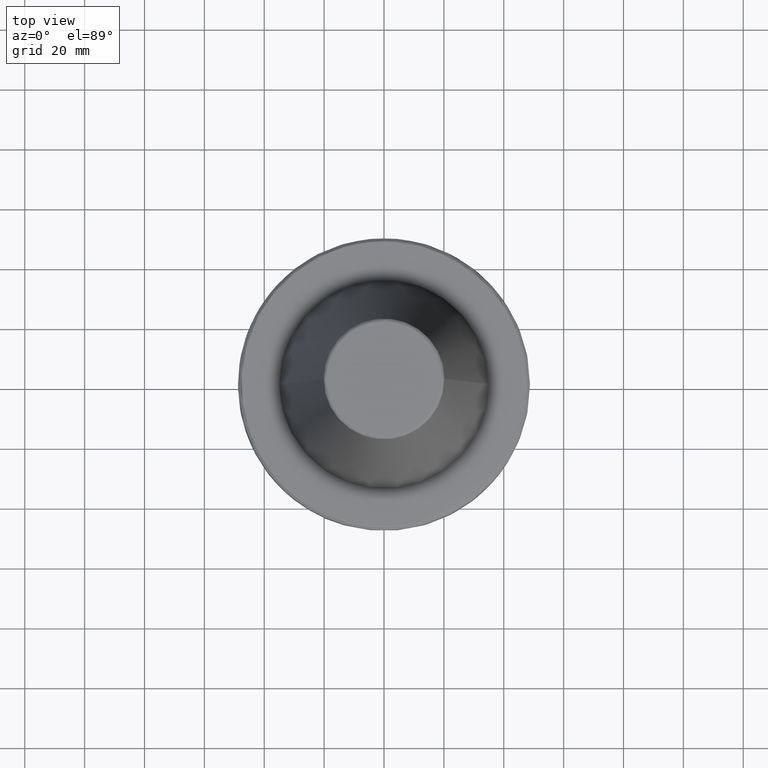
[diagram: clean part render]
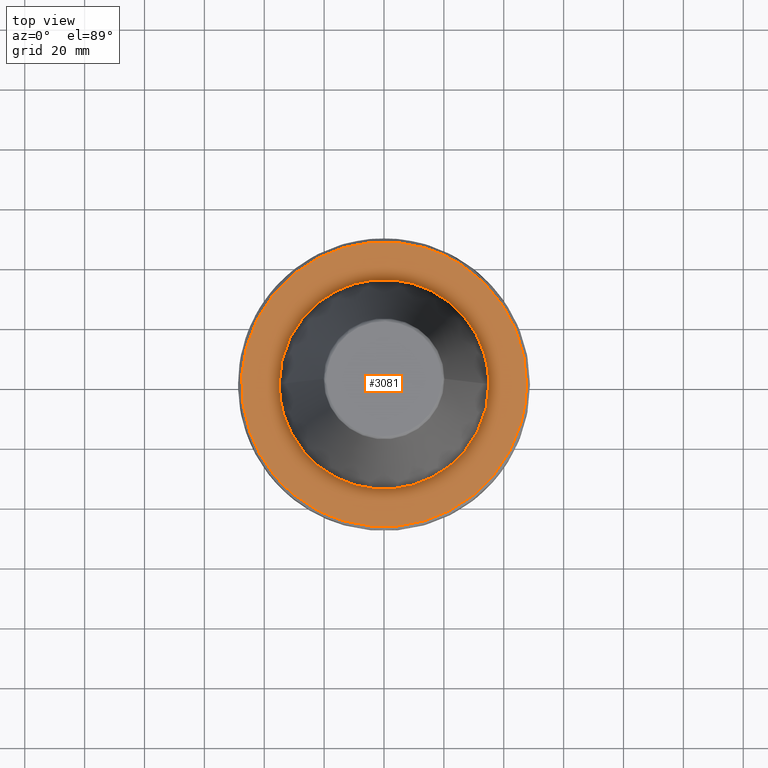
[diagram: same view with one face highlighted and labeled with its STEP entity id]
A machine part, top view. The second image highlights one B-rep face of the part: STEP entity #3081.
In plain terms, the highlighted planar face has unit normal (0, 0, 1).
Its self-contained STEP definition (entity closure, byte-faithful):
#1 = CIRCLE ( 'NONE', #2830, 47.58431457505076200 ) ;
#8 = CARTESIAN_POINT ( 'NONE',  ( -7.484680064100915700, -34.20919177140100200, -3.200000000000002000 ) ) ;
#20 = CARTESIAN_POINT ( 'NONE',  ( -18.71766838409589400, -29.57513658498475500, -3.200000000000001500 ) ) ;
#25 = CARTESIAN_POINT ( 'NONE',  ( -30.00000000000000700, -36.93598507658064300, -3.199999999999994400 ) ) ;
#30 = CARTESIAN_POINT ( 'NONE',  ( -29.25439692751874100, -19.21420423913502900, -3.200000000000001100 ) ) ;
#35 = CARTESIAN_POINT ( 'NONE',  ( -34.71393053172149500, 4.522777660849747000, -3.200000000000000600 ) ) ;
#53 = CARTESIAN_POINT ( 'NONE',  ( -34.22336994005453900, -7.342137192584755400, -3.200000000000001100 ) ) ;
#56 = CARTESIAN_POINT ( 'NONE',  ( -32.59456622067332200, 12.75129574512329000, -3.200000000000002000 ) ) ;
#98 = CARTESIAN_POINT ( 'NONE',  ( -29.37554792989231300, 19.02846970913294200, -3.200000000000002400 ) ) ;
#110 = CARTESIAN_POINT ( 'NONE',  ( -16.63655267340255200, 30.83329837198616000, -3.200000000000001500 ) ) ;
#117 = CARTESIAN_POINT ( 'NONE',  ( -19.43494740864859700, -43.54708784160002500, -3.200000000000001100 ) ) ;
#119 = CARTESIAN_POINT ( 'NONE',  ( 26.44261181941484300, -39.56134383749156300, -3.200000000000000600 ) ) ;
#121 = CARTESIAN_POINT ( 'NONE',  ( -6.612690763923023200, 34.36977381871476900, -3.200000000000001100 ) ) ;
#132 = CARTESIAN_POINT ( 'NONE',  ( 25.98226908289688800, -39.86687285254421200, -3.200000000000000600 ) ) ;
#136 = CARTESIAN_POINT ( 'NONE',  ( 6.302909256718462100, 34.42781451759762500, -3.200000000000002000 ) ) ;
#140 = CARTESIAN_POINT ( 'NONE',  ( 35.00000000000000000, 0.0000000000000000000, -3.200000000000001500 ) ) ;
#143 = CARTESIAN_POINT ( 'NONE',  ( 47.18039861107992300, 6.200159950490469600, -3.200000000000001100 ) ) ;
#148 = CARTESIAN_POINT ( 'NONE',  ( 25.05340298729066400, -40.46362946565685100, -3.200000000000001500 ) ) ;
#151 = CARTESIAN_POINT ( 'NONE',  ( -18.67389639941947600, 43.76706569847706900, -3.200000000000001500 ) ) ;
#152 = CARTESIAN_POINT ( 'NONE',  ( 17.39569460393197900, 30.38123465408075700, -3.200000000000001100 ) ) ;
#157 = CARTESIAN_POINT ( 'NONE',  ( -14.45957362275167100, 45.34410715121639200, -3.200000000000001100 ) ) ;
#158 = CARTESIAN_POINT ( 'NONE',  ( 45.31099424279402400, 14.53228453994817400, -3.200000000000002000 ) ) ;
#163 = CARTESIAN_POINT ( 'NONE',  ( -28.18663181544996400, 38.33853659444778800, -3.200000000000000600 ) ) ;
#164 = CARTESIAN_POINT ( 'NONE',  ( 29.12859832661076400, 19.40440699316710000, -3.200000000000002000 ) ) ;
#170 = CARTESIAN_POINT ( 'NONE',  ( 33.74831642305332500, 33.54865932863487600, -3.200000000000001100 ) ) ;
#172 = EDGE_LOOP ( 'NONE', ( #696, #3424 ) ) ;
#175 = CARTESIAN_POINT ( 'NONE',  ( -39.85970698512647200, 25.99808194460686300, -3.200000000000001100 ) ) ;
#176 = EDGE_CURVE ( 'NONE', #3006, #1628, #2315, .T. ) ;
#178 = CARTESIAN_POINT ( 'NONE',  ( 33.50782965918070000, 10.22234251020762700, -3.200000000000000600 ) ) ;
#182 = CARTESIAN_POINT ( 'NONE',  ( 25.85766165876341900, 39.96557434558405900, -3.200000000000002000 ) ) ;
#186 = CARTESIAN_POINT ( 'NONE',  ( -44.23199334317630600, 17.64654270460258400, -3.200000000000002000 ) ) ;
#194 = CARTESIAN_POINT ( 'NONE',  ( -47.44794916077430700, 3.614324310178101700, -3.200000000000002800 ) ) ;
#199 = CARTESIAN_POINT ( 'NONE',  ( -46.20125035460515800, -11.46493010789107300, -3.200000000000000200 ) ) ;
#206 = ORIENTED_EDGE ( 'NONE', *, *, #1292, .T. ) ;
#207 = CARTESIAN_POINT ( 'NONE',  ( -41.97089674875826400, -22.45806956467756900, -3.200000000000001100 ) ) ;
#215 = ORIENTED_EDGE ( 'NONE', *, *, #176, .T. ) ;
#220 = CARTESIAN_POINT ( 'NONE',  ( -13.55000000000004000, -45.61430141498812000, -3.199999999999999300 ) ) ;
#225 = CARTESIAN_POINT ( 'NONE',  ( 34.71393053172150900, -4.522777660849745200, -3.200000000000000600 ) ) ;
#231 = CARTESIAN_POINT ( 'NONE',  ( 32.59456622067307300, -12.75129574512461700, -3.200000000000001100 ) ) ;
#240 = CARTESIAN_POINT ( 'NONE',  ( 23.89460483453078900, -25.60289613072279000, -3.200000000000000600 ) ) ;
#250 = CARTESIAN_POINT ( 'NONE',  ( 13.12353511134049100, -32.44661293862724700, -3.200000000000001100 ) ) ;
#261 = CARTESIAN_POINT ( 'NONE',  ( 4.264027316360163400, -34.80519685504652500, -3.200000000000001100 ) ) ;
#268 = CARTESIAN_POINT ( 'NONE',  ( -11.02286519849236900, -33.22762448501621400, -3.200000000000001100 ) ) ;
#278 = CARTESIAN_POINT ( 'NONE',  ( -19.02846970913748200, -29.37554792988932900, -3.200000000000000600 ) ) ;
#291 = CARTESIAN_POINT ( 'NONE',  ( -30.83329837197338800, -16.63655267341178100, -3.200000000000002000 ) ) ;
#295 = CARTESIAN_POINT ( 'NONE',  ( -34.49823719593175000, 5.907950186018663200, -3.200000000000001100 ) ) ;
#301 = CARTESIAN_POINT ( 'NONE',  ( 47.02259631691209300, -7.289981784602988000, -3.200000000000000200 ) ) ;
#303 = CARTESIAN_POINT ( 'NONE',  ( -34.36977381871909600, -6.612690763914757900, -3.200000000000001500 ) ) ;
#305 = CARTESIAN_POINT ( 'NONE',  ( -32.55619322207724100, 12.84895367128259600, -3.200000000000001500 ) ) ;
#353 = CARTESIAN_POINT ( 'NONE',  ( -27.97287582442092500, 21.17444947139290100, -3.200000000000001500 ) ) ;
#356 = CARTESIAN_POINT ( 'NONE',  ( -35.00000000000000000, 4.286263797015737300E-015, -3.200000000000001500 ) ) ;
#369 = CARTESIAN_POINT ( 'NONE',  ( -13.83968161197703100, 32.14999761353126200, -3.200000000000001100 ) ) ;
#376 = CARTESIAN_POINT ( 'NONE',  ( -13.55000000000004000, -45.61430141498812000, -3.199999999999999300 ) ) ;
#385 = CARTESIAN_POINT ( 'NONE',  ( -6.438461267135233300, 34.40272425953072900, -3.200000000000000600 ) ) ;
#387 = VERTEX_POINT ( 'NONE', #220 ) ;
#396 = CARTESIAN_POINT ( 'NONE',  ( 32.45423464501639200, -34.79967915306077900, -3.200000000000002400 ) ) ;
#399 = CARTESIAN_POINT ( 'NONE',  ( 7.484680064034233900, 34.20919177141554000, -3.200000000000001500 ) ) ;
#405 = CARTESIAN_POINT ( 'NONE',  ( 47.06829021516598000, 6.989508869543020500, -3.200000000000001100 ) ) ;
#409 = CARTESIAN_POINT ( 'NONE',  ( -18.83616776527658500, 43.69747580304270700, -3.200000000000001100 ) ) ;
#411 = CARTESIAN_POINT ( 'NONE',  ( 18.71766838408140600, 29.57513658499558300, -3.200000000000001100 ) ) ;
#418 = CARTESIAN_POINT ( 'NONE',  ( -15.80948444976875100, 44.89884780776286300, -3.200000000000000600 ) ) ;
#419 = CARTESIAN_POINT ( 'NONE',  ( 44.21619689605959300, 17.66806265541932300, -3.199999999999999700 ) ) ;
#424 = CARTESIAN_POINT ( 'NONE',  ( 32.09796523353852400, -35.13085002072136100, -3.200000000000001500 ) ) ;
#426 = CARTESIAN_POINT ( 'NONE',  ( -28.77713114762264000, 37.89729735944649000, -3.200000000000001500 ) ) ;
#428 = CARTESIAN_POINT ( 'NONE',  ( 29.25439692751638500, 19.21420423913906100, -3.200000000000001500 ) ) ;
#437 = CARTESIAN_POINT ( 'NONE',  ( 33.16242677104989400, 34.12517462232685300, -3.200000000000002000 ) ) ;
#440 = CARTESIAN_POINT ( 'NONE',  ( 46.64842286613216500, -9.428839320853871400, -3.200000000000001100 ) ) ;
#443 = CARTESIAN_POINT ( 'NONE',  ( -40.51526929576444000, 24.95587079667019000, -3.200000000000001500 ) ) ;
#447 = CARTESIAN_POINT ( 'NONE',  ( 22.32197853637967500, 42.03222146232140900, -3.200000000000000600 ) ) ;
#449 = CARTESIAN_POINT ( 'NONE',  ( -45.74009876992972300, 13.15338452568506300, -3.200000000000002000 ) ) ;
#456 = CARTESIAN_POINT ( 'NONE',  ( -47.48922112369854200, 3.009240607174860300, -3.200000000000001500 ) ) ;
#467 = CARTESIAN_POINT ( 'NONE',  ( -45.52455029067157000, -13.85084669837307000, -3.200000000000000600 ) ) ;
#475 = CARTESIAN_POINT ( 'NONE',  ( -40.69683095875779300, -24.66047681318040200, -3.200000000000000600 ) ) ;
#481 = EDGE_CURVE ( 'NONE', #1668, #2296, #2128, .T. ) ;
#484 = CARTESIAN_POINT ( 'NONE',  ( 34.49823719593174300, -5.907950186018658700, -3.200000000000000600 ) ) ;
#498 = CARTESIAN_POINT ( 'NONE',  ( 32.55619322207754600, -12.84895367128201500, -3.200000000000000600 ) ) ;
#510 = CARTESIAN_POINT ( 'NONE',  ( 20.88778623095515000, -28.09551826175010400, -3.200000000000002400 ) ) ;
#518 = CARTESIAN_POINT ( 'NONE',  ( 12.95202981245491700, -32.51532341133663100, -3.200000000000002000 ) ) ;
#531 = CARTESIAN_POINT ( 'NONE',  ( -1.070209459185427600, -35.00001621622374900, -3.200000000000002400 ) ) ;
#544 = CARTESIAN_POINT ( 'NONE',  ( -12.42068019836582900, -32.72251864197144000, -3.200000000000002000 ) ) ;
#555 = CIRCLE ( 'NONE', #2373, 47.58431457505076200 ) ;
#556 = CARTESIAN_POINT ( 'NONE',  ( -21.17444947146037700, -27.97287582437680700, -3.200000000000001100 ) ) ;
#569 = CARTESIAN_POINT ( 'NONE',  ( -32.14999761352568400, -13.83968161198105500, -3.200000000000000600 ) ) ;
#572 = CARTESIAN_POINT ( 'NONE',  ( -34.43979647510159500, 6.237109590206945800, -3.200000000000001500 ) ) ;
#581 = AXIS2_PLACEMENT_3D ( 'NONE', #2475, #1162, #3005 ) ;
#588 = CARTESIAN_POINT ( 'NONE',  ( -34.40272425953199300, -6.438461267132821900, -3.200000000000001100 ) ) ;
#598 = CARTESIAN_POINT ( 'NONE',  ( 47.58431457505076200, 0.0000000000000000000, -3.200000000000000600 ) ) ;
#624 = DIRECTION ( 'NONE',  ( -0.0000000000000000000, -0.0000000000000000000, 1.000000000000000000 ) ) ;
#633 = CARTESIAN_POINT ( 'NONE',  ( -23.89460483454596200, 25.60289613071151700, -3.200000000000001100 ) ) ;
#651 = CARTESIAN_POINT ( 'NONE',  ( -13.12353511134512400, 32.44661293862448300, -3.200000000000002000 ) ) ;
#657 = B_SPLINE_CURVE_WITH_KNOTS ( 'NONE', 3,
 ( #3063, #1221, #3327, #1792, #143, #2048, #405, #2308, #682, #2559, #957, #2821, #1236, #3074, #1520, #3340, #1805, #158, #2062, #419, #2325, #698, #2574, #970, #2834, #1252, #3086, #1530, #3355, #1816, #170, #2073, #437, #2336, #708, #2588, #983, #2844, #1265, #3099, #1545, #3362, #1828, #182, #2083, #447, #2347, #716, #2593, #997, #2857, #1271, #3108, #1559, #3367 ),
 .UNSPECIFIED., .F., .F.,
 ( 4, 1, 1, 1, 1, 1, 2, 2, 1, 1, 1, 1, 2, 2, 1, 1, 1, 2, 2, 2, 1, 1, 1, 1, 2, 2, 1, 1, 1, 1, 2, 2, 1, 1, 1, 1, 1, 2, 2, 4 ),
 ( 0.0000000000000000000, 0.06249999999999872300, 0.09374999999999808500, 0.1093749999999977700, 0.1171874999999976100, 0.1210937499999975300, 0.1230468749999974700, 0.1249999999999974200, 0.1874999999999961100, 0.2187499999999954200, 0.2343749999999951400, 0.2421874999999949500, 0.2460937499999948900, 0.2499999999999948400, 0.3124999999999941700, 0.3437499999999937300, 0.3593749999999935100, 0.3671874999999933400, 0.3749999999999931700, 0.4999999999999917800, 0.5624999999999909000, 0.5937499999999907900, 0.6093749999999907900, 0.6171874999999905600, 0.6210937499999906700, 0.6249999999999906700, 0.6874999999999917800, 0.7187499999999924500, 0.7343749999999925600, 0.7421874999999925600, 0.7460937499999926700, 0.7499999999999926700, 0.8124999999999924500, 0.8437499999999925600, 0.8593749999999927800, 0.8671874999999927800, 0.8710937499999927800, 0.8730468749999927800, 0.8749999999999928900, 1.000000000000000000 ),
 .UNSPECIFIED. ) ;
#661 = CARTESIAN_POINT ( 'NONE',  ( -4.264027316417490000, 34.80519685506052200, -3.200000000000001100 ) ) ;
#669 = CARTESIAN_POINT ( 'NONE',  ( 46.18298664309590900, -11.58485019967819900, -3.200000000000001100 ) ) ;
#673 = CARTESIAN_POINT ( 'NONE',  ( 11.02286519840483300, 33.22762448503527100, -3.200000000000001100 ) ) ;
#682 = CARTESIAN_POINT ( 'NONE',  ( 47.03992380506183200, 7.177322297439717500, -3.200000000000000200 ) ) ;
#690 = CARTESIAN_POINT ( 'NONE',  ( -21.09892721072789700, 42.67032287655292300, -3.200000000000001500 ) ) ;
#692 = CARTESIAN_POINT ( 'NONE',  ( 19.02846970913313700, 29.37554792989258000, -3.200000000000000600 ) ) ;
#696 = ORIENTED_EDGE ( 'NONE', *, *, #481, .T. ) ;
#698 = CARTESIAN_POINT ( 'NONE',  ( 42.81655896315435000, 20.76531420100237900, -3.200000000000001100 ) ) ;
#703 = CARTESIAN_POINT ( 'NONE',  ( -32.04549828590995000, 35.23207161255322000, -3.200000000000001100 ) ) ;
#704 = CARTESIAN_POINT ( 'NONE',  ( 30.83329837203913100, 16.63655267329933100, -3.200000000000001500 ) ) ;
#708 = CARTESIAN_POINT ( 'NONE',  ( 32.98419360930024900, 34.29747021916393400, -3.200000000000001100 ) ) ;
#712 = CARTESIAN_POINT ( 'NONE',  ( -40.70889109936253200, 24.63874541703254600, -3.200000000000002000 ) ) ;
#716 = CARTESIAN_POINT ( 'NONE',  ( 20.84251516373738200, 42.77734476559471900, -3.200000000000000600 ) ) ;
#720 = CARTESIAN_POINT ( 'NONE',  ( -46.48964783892607500, 10.16745593392174600, -3.200000000000001100 ) ) ;
#723 = EDGE_LOOP ( 'NONE', ( #2158, #896, #206, #215, #2570, #1578, #1723 ) ) ;
#734 = CARTESIAN_POINT ( 'NONE',  ( -47.56112784876310000, 1.782910741998355000, -3.200000000000001500 ) ) ;
#739 = CARTESIAN_POINT ( 'NONE',  ( -45.30154187624126600, -14.56357692435866400, -3.200000000000001100 ) ) ;
#741 = CARTESIAN_POINT ( 'NONE',  ( 34.22336994005794300, 7.342137192553624700, -3.200000000000000600 ) ) ;
#744 = CARTESIAN_POINT ( 'NONE',  ( -40.37832428545935700, -25.17660737733758900, -3.200000000000001500 ) ) ;
#751 = EDGE_CURVE ( 'NONE', #1628, #3351, #657, .T. ) ;
#764 = CARTESIAN_POINT ( 'NONE',  ( 34.43979647510158800, -6.237109590206941300, -3.200000000000001100 ) ) ;
#769 = CARTESIAN_POINT ( 'NONE',  ( 31.37487172763907900, -15.59116830087131700, -3.200000000000002000 ) ) ;
#775 = CARTESIAN_POINT ( 'NONE',  ( 19.59265025307810100, -29.00292566127140100, -3.200000000000001500 ) ) ;
#788 = CARTESIAN_POINT ( 'NONE',  ( 11.82808836356204400, -32.96036308137187400, -3.200000000000002000 ) ) ;
#799 = CARTESIAN_POINT ( 'NONE',  ( -4.522662636201488300, -34.71395181551518000, -3.200000000000001100 ) ) ;
#808 = CARTESIAN_POINT ( 'NONE',  ( -12.75129574512861600, -32.59456622067233400, -3.200000000000002000 ) ) ;
#824 = CARTESIAN_POINT ( 'NONE',  ( -25.60289613074492700, -23.89460483450089300, -3.200000000000002000 ) ) ;
#841 = CARTESIAN_POINT ( 'NONE',  ( -32.44661293862293400, -13.12353511134623600, -3.200000000000001100 ) ) ;
#844 = CARTESIAN_POINT ( 'NONE',  ( -34.42214089842920500, 6.333832670999061800, -3.200000000000000600 ) ) ;
#857 = CARTESIAN_POINT ( 'NONE',  ( -34.80522929819336000, -4.263852012492216100, -3.200000000000001500 ) ) ;
#865 = CARTESIAN_POINT ( 'NONE',  ( 47.01629565795704500, -7.330514881587470600, -3.200000000000001100 ) ) ;
#867 = CARTESIAN_POINT ( 'NONE',  ( -31.37487172765630900, 15.59116830083820700, -3.200000000000000200 ) ) ;
#896 = ORIENTED_EDGE ( 'NONE', *, *, #3143, .T. ) ;
#911 = CARTESIAN_POINT ( 'NONE',  ( -20.88778623097507000, 28.09551826173528600, -3.200000000000001500 ) ) ;
#920 = CARTESIAN_POINT ( 'NONE',  ( -12.95202981245626000, 32.51532341133582800, -3.200000000000000200 ) ) ;
#929 = CARTESIAN_POINT ( 'NONE',  ( 41.76982192489803900, -22.79788105289517100, -3.200000000000001500 ) ) ;
#932 = CARTESIAN_POINT ( 'NONE',  ( 1.070209459212092300, 35.00001621621675700, -3.200000000000002000 ) ) ;
#950 = CARTESIAN_POINT ( 'NONE',  ( 12.42068019833845600, 32.72251864197743000, -3.200000000000000600 ) ) ;
#957 = CARTESIAN_POINT ( 'NONE',  ( 46.83576360695446500, 8.501588316358651200, -3.200000000000001100 ) ) ;
#962 = CARTESIAN_POINT ( 'NONE',  ( 41.21228271004850500, -23.80309394508987000, -3.200000000000002000 ) ) ;
#964 = CARTESIAN_POINT ( 'NONE',  ( -23.34110521951909300, 41.46762625125254700, -3.200000000000000600 ) ) ;
#965 = CARTESIAN_POINT ( 'NONE',  ( 21.17444947147954100, 27.97287582435764400, -3.200000000000001500 ) ) ;
#970 = CARTESIAN_POINT ( 'NONE',  ( 42.45501299875426300, 21.49105359671178700, -3.200000000000002800 ) ) ;
#972 = CARTESIAN_POINT ( 'NONE',  ( 46.94140912372339600, -7.798446834104212600, -3.200000000000001100 ) ) ;
#975 = CARTESIAN_POINT ( 'NONE',  ( -35.18967846161645200, 32.05755272126131700, -3.199999999999999300 ) ) ;
#976 = CARTESIAN_POINT ( 'NONE',  ( 32.14999761355444000, 13.83968161193186200, -3.200000000000000600 ) ) ;
#983 = CARTESIAN_POINT ( 'NONE',  ( 30.53220719718259700, 36.53788278290805600, -3.200000000000001100 ) ) ;
#986 = CARTESIAN_POINT ( 'NONE',  ( 45.67414891457808300, -13.40663716820895200, -3.200000000000002000 ) ) ;
#990 = CARTESIAN_POINT ( 'NONE',  ( -41.98321477245842500, 22.43503376055570400, -3.200000000000000200 ) ) ;
#997 = CARTESIAN_POINT ( 'NONE',  ( 20.48661267980696000, 42.94842543564713100, -3.200000000000001500 ) ) ;
#999 = CARTESIAN_POINT ( 'NONE',  ( 46.98556592418142900, -7.525599392343322000, -3.200000000000000200 ) ) ;
#1000 = CARTESIAN_POINT ( 'NONE',  ( -46.73577824854587000, 8.947554896730972400, -3.200000000000001500 ) ) ;
#1006 = CARTESIAN_POINT ( 'NONE',  ( -47.56778356128132400, -1.415082110030649000, -3.200000000000002000 ) ) ;
#1014 = CARTESIAN_POINT ( 'NONE',  ( -44.41590363917679700, -17.12310430751411200, -3.200000000000000200 ) ) ;
#1018 = CARTESIAN_POINT ( 'NONE',  ( 34.36977381872005600, 6.612690763906142500, -3.200000000000001500 ) ) ;
#1025 = CARTESIAN_POINT ( 'NONE',  ( -40.28098785900309100, -25.33204419653117500, -3.200000000000001100 ) ) ;
#1040 = CARTESIAN_POINT ( 'NONE',  ( 34.42214089842926900, -6.333832670998722500, -3.200000000000000600 ) ) ;
#1046 = AXIS2_PLACEMENT_3D ( 'NONE', #2254, #624, #2508 ) ;
#1052 = CARTESIAN_POINT ( 'NONE',  ( 29.84963310933858300, -18.28000292853714400, -3.200000000000001100 ) ) ;
#1062 = CARTESIAN_POINT ( 'NONE',  ( 19.27860445472082400, -29.21200324985414900, -3.200000000000002400 ) ) ;
#1071 = CARTESIAN_POINT ( 'NONE',  ( 8.308886591224443000, -34.00795424932159200, -3.200000000000000600 ) ) ;
#1078 = CARTESIAN_POINT ( 'NONE',  ( -5.907914240816079900, -34.49824384711726600, -3.200000000000000600 ) ) ;
#1090 = CARTESIAN_POINT ( 'NONE',  ( -12.84895367128145700, -32.55619322207798700, -3.200000000000001500 ) ) ;
#1107 = CARTESIAN_POINT ( 'NONE',  ( -28.09551826177911600, -20.88778623091590700, -3.200000000000001100 ) ) ;
#1120 = CARTESIAN_POINT ( 'NONE',  ( -32.51532341133536600, -12.95202981245658700, -3.200000000000001500 ) ) ;
#1122 = CARTESIAN_POINT ( 'NONE',  ( -33.82018250935632900, 9.135985986312031000, -3.200000000000001500 ) ) ;
#1136 = CARTESIAN_POINT ( 'NONE',  ( -35.00000000000000000, 4.286263797015737300E-015, -3.200000000000001500 ) ) ;
#1148 = CARTESIAN_POINT ( 'NONE',  ( 47.58431457505076200, -2.431850974179657200, -3.200000000000001100 ) ) ;
#1162 = DIRECTION ( 'NONE',  ( 0.0000000000000000000, 0.0000000000000000000, 1.000000000000000000 ) ) ;
#1176 = CARTESIAN_POINT ( 'NONE',  ( -13.54999999999997400, 45.61430141498814800, -3.200000000000000200 ) ) ;
#1188 = CARTESIAN_POINT ( 'NONE',  ( -19.59265025308431900, 29.00292566126676500, -3.200000000000000600 ) ) ;
#1204 = CARTESIAN_POINT ( 'NONE',  ( -11.82808836364358700, 32.96036308134373600, -3.200000000000001500 ) ) ;
#1213 = CARTESIAN_POINT ( 'NONE',  ( 42.23167771956080000, -21.92622009205960200, -3.200000000000001500 ) ) ;
#1215 = CARTESIAN_POINT ( 'NONE',  ( 4.522662636236486100, 34.71395181550598600, -3.200000000000000600 ) ) ;
#1221 = CARTESIAN_POINT ( 'NONE',  ( 47.58431457505076200, 1.215756928409049700, -3.200000000000001100 ) ) ;
#1225 = CARTESIAN_POINT ( 'NONE',  ( 14.71542401581954900, -45.26810526762883300, -3.200000000000002000 ) ) ;
#1229 = CARTESIAN_POINT ( 'NONE',  ( 12.75129574512042500, 32.59456622067411800, -3.200000000000002000 ) ) ;
#1236 = CARTESIAN_POINT ( 'NONE',  ( 45.92256546687734400, 12.49385015592596200, -3.200000000000002000 ) ) ;
#1240 = CARTESIAN_POINT ( 'NONE',  ( 16.43872634146729400, -44.68369591764076900, -3.200000000000000600 ) ) ;
#1242 = CARTESIAN_POINT ( 'NONE',  ( -23.86724792859447000, 41.16595836710557400, -3.200000000000002000 ) ) ;
#1245 = CARTESIAN_POINT ( 'NONE',  ( 25.60289613075804000, 23.89460483448777900, -3.200000000000001100 ) ) ;
#1252 = CARTESIAN_POINT ( 'NONE',  ( 41.10236839377797900, 24.12040806573907000, -3.200000000000000200 ) ) ;
#1256 = CARTESIAN_POINT ( 'NONE',  ( 45.10896982988836600, -15.14909382746511600, -3.200000000000000600 ) ) ;
#1258 = CARTESIAN_POINT ( 'NONE',  ( -36.79819512846717100, 30.16990998854124200, -3.200000000000000200 ) ) ;
#1259 = CARTESIAN_POINT ( 'NONE',  ( 32.44661293863091300, 13.12353511133261600, -3.200000000000002000 ) ) ;
#1265 = CARTESIAN_POINT ( 'NONE',  ( 27.83019210805429500, 38.59969460726222900, -3.200000000000001100 ) ) ;
#1267 = CARTESIAN_POINT ( 'NONE',  ( 21.48646288117771500, -42.47584807160913600, -3.200000000000002000 ) ) ;
#1268 = CARTESIAN_POINT ( 'NONE',  ( -43.10740714057175900, 20.15248412371877200, -3.200000000000002000 ) ) ;
#1271 = CARTESIAN_POINT ( 'NONE',  ( 20.37821948653731900, 42.99996010883769100, -3.200000000000000200 ) ) ;
#1273 = CARTESIAN_POINT ( 'NONE',  ( 20.30816862367387200, -43.03308960635293800, -3.200000000000002000 ) ) ;
#1275 = CARTESIAN_POINT ( 'NONE',  ( -46.79040597101955300, 8.656115448796455800, -3.200000000000002000 ) ) ;
#1283 = CARTESIAN_POINT ( 'NONE',  ( -47.51138638385872100, -2.645014036827867600, -3.200000000000002000 ) ) ;
#1291 = CARTESIAN_POINT ( 'NONE',  ( -43.40588131499507800, -19.50138494801382900, -3.200000000000000600 ) ) ;
#1292 = EDGE_CURVE ( 'NONE', #387, #3006, #1, .T. ) ;
#1293 = CARTESIAN_POINT ( 'NONE',  ( 34.40272425953227000, 6.438461267130299400, -3.200000000000001500 ) ) ;
#1296 = CARTESIAN_POINT ( 'NONE',  ( -38.13264634445407400, -28.52667124227014700, -3.200000000000000600 ) ) ;
#1314 = CARTESIAN_POINT ( 'NONE',  ( 33.82018250935284000, -9.135985986330826600, -3.200000000000000600 ) ) ;
#1320 = CARTESIAN_POINT ( 'NONE',  ( 0.0000000000000000000, 0.0000000000000000000, -3.199999999999994400 ) ) ;
#1326 = CARTESIAN_POINT ( 'NONE',  ( 29.45563184198762100, -18.90427742788056500, -3.200000000000002000 ) ) ;
#1335 = CARTESIAN_POINT ( 'NONE',  ( 18.16253543797202500, -29.94197833481824500, -3.200000000000002000 ) ) ;
#1348 = CARTESIAN_POINT ( 'NONE',  ( 6.856257133420490900, -34.32241613434766900, -3.200000000000000600 ) ) ;
#1362 = CARTESIAN_POINT ( 'NONE',  ( -6.237098849438081200, -34.43979846253916600, -3.200000000000002000 ) ) ;
#1372 = CARTESIAN_POINT ( 'NONE',  ( -15.59116830090281700, -31.37487172761408500, -3.200000000000002000 ) ) ;
#1383 = CARTESIAN_POINT ( 'NONE',  ( -29.00292566128046800, -19.59265025306582700, -3.200000000000001500 ) ) ;
#1385 = CARTESIAN_POINT ( 'NONE',  ( -34.92696098682252200, 2.669108274075320700, -3.200000000000001500 ) ) ;
#1400 = CARTESIAN_POINT ( 'NONE',  ( -32.96036308136418600, -11.82808836360453800, -3.200000000000002000 ) ) ;
#1404 = CARTESIAN_POINT ( 'NONE',  ( -32.89666700154491300, 11.95639371353719200, -3.200000000000000600 ) ) ;
#1458 = CARTESIAN_POINT ( 'NONE',  ( -29.84963310934612200, 18.28000292852267300, -3.200000000000000600 ) ) ;
#1463 = CARTESIAN_POINT ( 'NONE',  ( -36.93598507658065000, -29.99999999999998900, -3.199999999999994400 ) ) ;
#1471 = CARTESIAN_POINT ( 'NONE',  ( -19.27860445472269300, 29.21200324985276000, -3.200000000000002000 ) ) ;
#1481 = CARTESIAN_POINT ( 'NONE',  ( -8.308886591331488000, 34.00795424928465100, -3.200000000000001100 ) ) ;
#1490 = CARTESIAN_POINT ( 'NONE',  ( 46.84908902925831600, -8.343185694223766500, -3.200000000000001500 ) ) ;
#1492 = CARTESIAN_POINT ( 'NONE',  ( 5.907914240827012400, 34.49824384711439500, -3.200000000000001100 ) ) ;
#1506 = CARTESIAN_POINT ( 'NONE',  ( 40.03666779866425400, -25.77557849477504300, -3.200000000000001500 ) ) ;
#1509 = CARTESIAN_POINT ( 'NONE',  ( 12.84895367128254200, 32.55619322207718400, -3.200000000000001500 ) ) ;
#1520 = CARTESIAN_POINT ( 'NONE',  ( 45.45322280364641900, 14.08247786516283500, -3.200000000000000200 ) ) ;
#1523 = CARTESIAN_POINT ( 'NONE',  ( -24.92706840148889200, 40.54480131741012600, -3.200000000000000200 ) ) ;
#1524 = CARTESIAN_POINT ( 'NONE',  ( 28.09551826179633900, 20.88778623089868700, -3.200000000000001100 ) ) ;
#1530 = CARTESIAN_POINT ( 'NONE',  ( 37.35106965264090900, 29.51098510206481500, -3.200000000000001100 ) ) ;
#1535 = CARTESIAN_POINT ( 'NONE',  ( 38.92522104887463300, -27.40123742072654200, -3.200000000000001500 ) ) ;
#1537 = CARTESIAN_POINT ( 'NONE',  ( -37.26711317191568200, 29.58867595936017000, -3.200000000000000600 ) ) ;
#1539 = EDGE_CURVE ( 'NONE', #2296, #1668, #1992, .T. ) ;
#1540 = CARTESIAN_POINT ( 'NONE',  ( 32.51532341133770400, 12.95202981245260600, -3.200000000000001500 ) ) ;
#1545 = CARTESIAN_POINT ( 'NONE',  ( 27.16737028581966500, 39.06671061190507300, -3.200000000000002000 ) ) ;
#1548 = CARTESIAN_POINT ( 'NONE',  ( 42.15563262230165300, -22.07208034062934100, -3.200000000000001500 ) ) ;
#1551 = CARTESIAN_POINT ( 'NONE',  ( -43.35979223298974000, 19.60099611362920800, -3.200000000000000600 ) ) ;
#1559 = CARTESIAN_POINT ( 'NONE',  ( 15.88117119207681500, 44.92181312353615400, -3.200000000000000600 ) ) ;
#1560 = CARTESIAN_POINT ( 'NONE',  ( 42.04102447211213400, -22.29053195245979100, -3.200000000000000200 ) ) ;
#1562 = CARTESIAN_POINT ( 'NONE',  ( -46.98600002215513200, 7.584584315782565000, -3.200000000000001500 ) ) ;
#1570 = CARTESIAN_POINT ( 'NONE',  ( -47.34983381932083500, -5.119585582055673700, -3.200000000000001500 ) ) ;
#1576 = CARTESIAN_POINT ( 'NONE',  ( -43.14895193716036200, -20.06115815704972900, -3.200000000000001100 ) ) ;
#1577 = EDGE_CURVE ( 'NONE', #2102, #1714, #1784, .T. ) ;
#1578 = ORIENTED_EDGE ( 'NONE', *, *, #2691, .T. ) ;
#1580 = CARTESIAN_POINT ( 'NONE',  ( 34.80522929819336800, 4.263852012523358300, -3.200000000000001500 ) ) ;
#1598 = CARTESIAN_POINT ( 'NONE',  ( 32.89666700154338500, -11.95639371354541900, -3.200000000000001100 ) ) ;
#1602 = DIRECTION ( 'NONE',  ( 1.000000000000000000, 0.0000000000000000000, 0.0000000000000000000 ) ) ;
#1604 = DIRECTION ( 'NONE',  ( -0.0000000000000000000, -0.0000000000000000000, 1.000000000000000000 ) ) ;
#1605 = VERTEX_POINT ( 'NONE', #1176 ) ;
#1607 = CARTESIAN_POINT ( 'NONE',  ( 29.33615436353597900, -19.08915049026279600, -3.200000000000002400 ) ) ;
#1621 = CARTESIAN_POINT ( 'NONE',  ( 14.78401017750829600, -31.73425127813054300, -3.200000000000000200 ) ) ;
#1628 = VERTEX_POINT ( 'NONE', #1640 ) ;
#1636 = CARTESIAN_POINT ( 'NONE',  ( 6.508170961267519600, -34.38960595214408000, -3.200000000000001100 ) ) ;
#1639 = FACE_OUTER_BOUND ( 'NONE', #723, .T. ) ;
#1640 = CARTESIAN_POINT ( 'NONE',  ( 47.58431457505076200, 0.0000000000000000000, -3.200000000000000600 ) ) ;
#1645 = CARTESIAN_POINT ( 'NONE',  ( -6.333832670997710000, -34.42214089842946100, -3.200000000000001500 ) ) ;
#1651 = CARTESIAN_POINT ( 'NONE',  ( -18.28000292855092800, -29.84963310932764500, -3.200000000000000600 ) ) ;
#1668 = VERTEX_POINT ( 'NONE', #356 ) ;
#1673 = CARTESIAN_POINT ( 'NONE',  ( -29.21200324985685300, -19.27860445471714700, -3.200000000000000600 ) ) ;
#1676 = CARTESIAN_POINT ( 'NONE',  ( -35.00000000000000000, 4.286263797015737300E-015, -3.200000000000001500 ) ) ;
#1690 = CARTESIAN_POINT ( 'NONE',  ( -34.00795424931148100, -8.308886591280263200, -3.200000000000001500 ) ) ;
#1693 = CARTESIAN_POINT ( 'NONE',  ( -32.63327705773234300, 12.65220399756846900, -3.200000000000000600 ) ) ;
#1714 = VERTEX_POINT ( 'NONE', #25 ) ;
#1723 = ORIENTED_EDGE ( 'NONE', *, *, #3291, .T. ) ;
#1741 = CARTESIAN_POINT ( 'NONE',  ( -29.45563184198997300, 18.90427742787601100, -3.200000000000001500 ) ) ;
#1755 = CARTESIAN_POINT ( 'NONE',  ( -18.16253543799391000, 29.94197833480527700, -3.200000000000001500 ) ) ;
#1764 = CARTESIAN_POINT ( 'NONE',  ( -24.97130974582767500, -40.62625888906097800, -3.200000000000001500 ) ) ;
#1767 = CARTESIAN_POINT ( 'NONE',  ( 19.86206875586308800, -43.24125797507353000, -3.200000000000001100 ) ) ;
#1770 = CARTESIAN_POINT ( 'NONE',  ( -6.856257133453938800, 34.32241613433611600, -3.200000000000001500 ) ) ;
#1783 = CARTESIAN_POINT ( 'NONE',  ( 42.90142996046847700, -20.62574051019854300, -3.200000000000001100 ) ) ;
#1784 = CIRCLE ( 'NONE', #1046, 47.58431457505076200 ) ;
#1786 = CARTESIAN_POINT ( 'NONE',  ( 6.237098849441338200, 34.43979846253830600, -3.200000000000000200 ) ) ;
#1792 = CARTESIAN_POINT ( 'NONE',  ( 47.31214181079801100, 5.146351426634836900, -3.200000000000001100 ) ) ;
#1797 = CARTESIAN_POINT ( 'NONE',  ( 42.27004183452235300, -21.85216361823242400, -3.200000000000001500 ) ) ;
#1799 = CARTESIAN_POINT ( 'NONE',  ( -18.51023748604212900, 43.83677434805574800, -3.200000000000001500 ) ) ;
#1801 = CARTESIAN_POINT ( 'NONE',  ( 15.59116830084095000, 31.37487172766022800, -3.200000000000000600 ) ) ;
#1805 = CARTESIAN_POINT ( 'NONE',  ( 45.33440982915470100, 14.45906218182411300, -3.200000000000001500 ) ) ;
#1808 = CARTESIAN_POINT ( 'NONE',  ( 36.56395844830073100, -30.56583245044849700, -3.200000000000001500 ) ) ;
#1810 = CARTESIAN_POINT ( 'NONE',  ( -27.59041333252697100, 38.77454812697472200, -3.200000000000001100 ) ) ;
#1811 = CARTESIAN_POINT ( 'NONE',  ( 29.00292566128584700, 19.59265025306045900, -3.200000000000001500 ) ) ;
#1816 = CARTESIAN_POINT ( 'NONE',  ( 34.55314944065867900, 32.72796038959345600, -3.200000000000000200 ) ) ;
#1820 = CARTESIAN_POINT ( 'NONE',  ( 26.76977245759798100, -39.34021449234833100, -3.200000000000001500 ) ) ;
#1822 = CARTESIAN_POINT ( 'NONE',  ( -38.90399569012411300, 27.43086430563231600, -3.200000000000001100 ) ) ;
#1824 = CARTESIAN_POINT ( 'NONE',  ( 32.96036308136864100, 11.82808836356392300, -3.200000000000001500 ) ) ;
#1828 = CARTESIAN_POINT ( 'NONE',  ( 26.96538805817894200, 39.20638976705748700, -3.200000000000001500 ) ) ;
#1832 = CARTESIAN_POINT ( 'NONE',  ( 26.63902506836144800, -39.42887053636267300, -3.200000000000000200 ) ) ;
#1833 = CARTESIAN_POINT ( 'NONE',  ( -43.43501619728819900, 19.43372875604334700, -3.200000000000000600 ) ) ;
#1835 = CARTESIAN_POINT ( 'NONE',  ( 31.25572989651873700, -35.89007667584675700, -3.200000000000001500 ) ) ;
#1836 = CARTESIAN_POINT ( 'NONE',  ( -47.37922375095547500, 4.460096613416203200, -3.200000000000001100 ) ) ;
#1841 = CARTESIAN_POINT ( 'NONE',  ( -46.52941323171062000, -10.01342565816218900, -3.200000000000001100 ) ) ;
#1848 = CARTESIAN_POINT ( 'NONE',  ( -42.63057220843698800, -21.16233354872792200, -3.200000000000002800 ) ) ;
#1851 = CARTESIAN_POINT ( 'NONE',  ( 35.00000000000000000, 0.0000000000000000000, -3.200000000000001500 ) ) ;
#1856 = CARTESIAN_POINT ( 'NONE',  ( 34.92696098682253600, -2.669108274075315400, -3.200000000000001500 ) ) ;
#1869 = CARTESIAN_POINT ( 'NONE',  ( 32.63327705773191000, -12.65220399757075000, -3.200000000000001100 ) ) ;
#1884 = CARTESIAN_POINT ( 'NONE',  ( 26.45700235552588400, -23.04041976314191200, -3.200000000000000600 ) ) ;
#1892 = CARTESIAN_POINT ( 'NONE',  ( 13.36300299978126000, -32.34918825183396500, -3.200000000000001100 ) ) ;
#1902 = CARTESIAN_POINT ( 'NONE',  ( 6.401592451894831700, -34.40960181707281900, -3.200000000000000600 ) ) ;
#1914 = CARTESIAN_POINT ( 'NONE',  ( -9.135985986387860100, -33.82018250934229500, -3.200000000000000200 ) ) ;
#1927 = CARTESIAN_POINT ( 'NONE',  ( -18.90427742788488900, -29.45563184198417900, -3.200000000000000600 ) ) ;
#1942 = CARTESIAN_POINT ( 'NONE',  ( -29.94197833479797300, -18.16253543799919300, -3.200000000000002000 ) ) ;
#1944 = CARTESIAN_POINT ( 'NONE',  ( -34.57546073590584300, 5.446709774287301200, -3.200000000000000200 ) ) ;
#1950 = CARTESIAN_POINT ( 'NONE',  ( 47.39900545896377100, -4.849328732884628400, -3.200000000000000200 ) ) ;
#1956 = CARTESIAN_POINT ( 'NONE',  ( -34.32241613434451500, -6.856257133437938300, -3.200000000000001100 ) ) ;
#1959 = CARTESIAN_POINT ( 'NONE',  ( -32.56865578623123300, 12.81732741286531400, -3.200000000000000600 ) ) ;
#1992 = B_SPLINE_CURVE_WITH_KNOTS ( 'NONE', 3,
 ( #2888, #3399, #1856, #225, #2119, #484, #2379, #764, #2631, #1040, #2898, #1314, #3147, #1598, #3411, #1869, #231, #2129, #498, #2388, #769, #2640, #1052, #2903, #1326, #3157, #1607, #3418, #1884, #240, #2134, #510, #2397, #775, #2648, #1062, #2911, #1335, #3172, #1621, #3425, #1892, #250, #2144, #518, #2409, #788, #2655, #1071, #2925, #1348, #3181, #1636, #3436, #1902, #261, #2161, #531, #2418, #799, #2667, #1078, #2935, #1362, #3191, #1645, #8, #1914, #268, #2171, #544, #2430, #808, #2680, #1090, #2944, #1372, #3205, #1651, #20, #1927, #278, #2184, #556, #2442, #824, #2692, #1107, #2955, #1383, #3219, #1673, #30, #1942, #291, #2199, #569, #2458, #841, #2706, #1120, #2972, #1400, #3234, #1690, #53, #1956, #303, #2213, #588, #2471, #857, #2723, #1136 ),
 .UNSPECIFIED., .F., .F.,
 ( 4, 1, 1, 1, 1, 1, 2, 2, 1, 1, 1, 1, 1, 2, 2, 1, 1, 1, 1, 2, 2, 2, 1, 1, 1, 1, 2, 2, 1, 1, 1, 1, 1, 2, 2, 1, 1, 1, 1, 1, 2, 2, 2, 1, 1, 1, 1, 1, 2, 2, 1, 1, 1, 1, 1, 2, 2, 1, 1, 1, 1, 2, 2, 2, 1, 1, 1, 1, 2, 2, 1, 1, 1, 1, 1, 2, 2, 1, 1, 1, 1, 1, 2, 2, 4 ),
 ( 0.0000000000000000000, 0.03124999999999995100, 0.04687499999999993100, 0.05468749999999993100, 0.05859374999999991000, 0.06054687499999991000, 0.06152343749999988200, 0.06249999999999985400, 0.09374999999999808500, 0.1093749999999971400, 0.1171874999999966800, 0.1210937499999964600, 0.1230468749999963800, 0.1240234374999963800, 0.1249999999999963800, 0.1562499999999951400, 0.1718749999999945000, 0.1796874999999942300, 0.1835937499999940600, 0.1855468749999939500, 0.1874999999999938400, 0.2499999999999893400, 0.2812499999999871200, 0.2968749999999860100, 0.3046874999999854000, 0.3085937499999851200, 0.3105468749999850100, 0.3124999999999849000, 0.3437499999999827400, 0.3593749999999816300, 0.3671874999999811300, 0.3710937499999808500, 0.3730468749999806300, 0.3740234374999805700, 0.3749999999999805200, 0.4062499999999794100, 0.4218749999999788500, 0.4296874999999785700, 0.4335937499999784600, 0.4355468749999784100, 0.4365234374999784100, 0.4374999999999784100, 0.4999999999999781300, 0.5312499999999780200, 0.5468749999999779100, 0.5546874999999779100, 0.5585937499999779100, 0.5605468749999779100, 0.5615234374999779100, 0.5624999999999779100, 0.5937499999999764600, 0.6093749999999755800, 0.6171874999999752400, 0.6210937499999750200, 0.6230468749999749100, 0.6240234374999749100, 0.6249999999999749100, 0.6562499999999756900, 0.6718749999999761300, 0.6796874999999762400, 0.6835937499999764600, 0.6855468749999765700, 0.6874999999999766900, 0.7499999999999799000, 0.7812499999999814600, 0.7968749999999823500, 0.8046874999999827900, 0.8085937499999830100, 0.8105468749999831200, 0.8124999999999832400, 0.8437499999999857900, 0.8593749999999871200, 0.8671874999999877900, 0.8710937499999881200, 0.8730468749999883400, 0.8740234374999884500, 0.8749999999999885600, 0.9062499999999917800, 0.9218749999999934500, 0.9296874999999942300, 0.9335937499999946700, 0.9355468749999948900, 0.9365234374999950000, 0.9374999999999951200, 1.000000000000000000 ),
 .UNSPECIFIED. ) ;
#2003 = CARTESIAN_POINT ( 'NONE',  ( -29.33615436353504800, 19.08915049026396100, -3.200000000000001500 ) ) ;
#2019 = CARTESIAN_POINT ( 'NONE',  ( -14.78401017753703600, 31.73425127811351500, -3.200000000000002000 ) ) ;
#2026 = CARTESIAN_POINT ( 'NONE',  ( -16.55057121623590200, -44.72296385815257500, -3.200000000000000600 ) ) ;
#2028 = CARTESIAN_POINT ( 'NONE',  ( 29.52749904819350800, -37.35450850843377400, -3.200000000000001500 ) ) ;
#2030 = CARTESIAN_POINT ( 'NONE',  ( -6.508170961277508000, 34.38960595214063400, -3.200000000000001100 ) ) ;
#2038 = CARTESIAN_POINT ( 'NONE',  ( 27.97114087942505700, -38.51712754608465900, -3.200000000000001100 ) ) ;
#2041 = CARTESIAN_POINT ( 'NONE',  ( 6.333832670999783000, 34.42214089842899900, -3.200000000000001100 ) ) ;
#2048 = CARTESIAN_POINT ( 'NONE',  ( 47.10692644200639000, 6.726488513081616100, -3.200000000000001500 ) ) ;
#2053 = CARTESIAN_POINT ( 'NONE',  ( 32.69070567709005800, -34.57761234896172200, -3.200000000000001500 ) ) ;
#2055 = CARTESIAN_POINT ( 'NONE',  ( -18.78292708330067400, 43.72038509902981900, -3.200000000000001100 ) ) ;
#2057 = CARTESIAN_POINT ( 'NONE',  ( 18.28000292852387400, 29.84963310934783100, -3.200000000000001500 ) ) ;
#2061 = CARTESIAN_POINT ( 'NONE',  ( -13.54999999999997400, 45.61430141498814800, -3.200000000000000200 ) ) ;
#2062 = CARTESIAN_POINT ( 'NONE',  ( 44.88749798157665800, 15.84507372817880400, -3.200000000000000600 ) ) ;
#2066 = CARTESIAN_POINT ( 'NONE',  ( -28.58198463059762100, 38.04468543630500900, -3.200000000000001500 ) ) ;
#2067 = CARTESIAN_POINT ( 'NONE',  ( 29.21200324985845900, 19.27860445471553800, -3.200000000000001100 ) ) ;
#2073 = CARTESIAN_POINT ( 'NONE',  ( 33.33919882938131000, 33.95310552516747300, -3.200000000000002000 ) ) ;
#2074 = CARTESIAN_POINT ( 'NONE',  ( 13.55000000000005400, 45.61430141498812000, -3.199999999999999300 ) ) ;
#2075 = CARTESIAN_POINT ( 'NONE',  ( 13.55000000000001500, -45.61430141498812000, -3.199999999999999300 ) ) ;
#2078 = CARTESIAN_POINT ( 'NONE',  ( -40.32107391084105100, 25.27025022231766700, -3.200000000000002000 ) ) ;
#2079 = CARTESIAN_POINT ( 'NONE',  ( 34.00795424931733600, 8.308886591226912100, -3.200000000000002000 ) ) ;
#2083 = CARTESIAN_POINT ( 'NONE',  ( 24.25619299509419200, 40.97211381916579100, -3.200000000000001100 ) ) ;
#2086 = CARTESIAN_POINT ( 'NONE',  ( -44.89906720433159400, 15.87259900968969900, -3.200000000000001100 ) ) ;
#2097 = CARTESIAN_POINT ( 'NONE',  ( -47.47326417021244500, 3.251341897500514400, -3.200000000000000600 ) ) ;
#2102 = VERTEX_POINT ( 'NONE', #1463 ) ;
#2105 = CARTESIAN_POINT ( 'NONE',  ( -45.73940813873823400, -13.13810827488233800, -3.200000000000000600 ) ) ;
#2108 = CARTESIAN_POINT ( 'NONE',  ( -41.13291324452581000, -23.93254399505175200, -3.200000000000000600 ) ) ;
#2119 = CARTESIAN_POINT ( 'NONE',  ( 34.57546073590583500, -5.446709774287297600, -3.200000000000001100 ) ) ;
#2128 = B_SPLINE_CURVE_WITH_KNOTS ( 'NONE', 3,
 ( #1676, #3221, #1385, #35, #1944, #295, #2201, #572, #2460, #844, #2709, #1122, #2976, #1404, #3236, #1693, #56, #1959, #305, #2469, #867, #3024, #1458, #3278, #1741, #98, #2003, #353, #2263, #633, #2515, #911, #2776, #1188, #3032, #1471, #3292, #1755, #110, #2019, #369, #2274, #651, #2530, #920, #2791, #1204, #3043, #1481, #3309, #1770, #121, #2030, #385, #2288, #661, #2540, #932, #2799, #1215, #3057, #1492, #3320, #1786, #136, #2041, #399, #2303, #673, #2555, #950, #2814, #1229, #3070, #1509, #3334, #1801, #152, #2057, #411, #2318, #692, #2569, #965, #2828, #1245, #3079, #1524, #3348, #1811, #164, #2067, #428, #2332, #704, #2582, #976, #2841, #1259, #3095, #1540, #3359, #1824, #178, #2079, #741, #2617, #1018, #2872, #1293, #3129, #1580, #3387, #1851 ),
 .UNSPECIFIED., .F., .F.,
 ( 4, 1, 1, 1, 1, 1, 2, 2, 1, 1, 1, 1, 1, 2, 2, 1, 1, 1, 1, 2, 2, 2, 1, 1, 1, 1, 2, 2, 1, 1, 1, 1, 1, 2, 2, 1, 1, 1, 1, 1, 2, 2, 2, 1, 1, 1, 1, 1, 2, 2, 1, 1, 1, 1, 1, 2, 2, 1, 1, 1, 1, 2, 2, 2, 1, 1, 1, 1, 2, 2, 1, 1, 1, 1, 1, 2, 2, 1, 1, 1, 1, 1, 2, 2, 4 ),
 ( 0.0000000000000000000, 0.03124999999999877200, 0.04687499999999816100, 0.05468749999999786300, 0.05859374999999769600, 0.06054687499999759900, 0.06152343749999752300, 0.06249999999999744000, 0.09374999999999490700, 0.1093749999999936000, 0.1171874999999929600, 0.1210937499999926600, 0.1230468749999925300, 0.1240234374999925100, 0.1249999999999924800, 0.1562499999999923900, 0.1718749999999923100, 0.1796874999999922600, 0.1835937499999922000, 0.1855468749999921500, 0.1874999999999921200, 0.2499999999999907300, 0.2812499999999900600, 0.2968749999999897300, 0.3046874999999895600, 0.3085937499999895600, 0.3105468749999895600, 0.3124999999999896200, 0.3437499999999892300, 0.3593749999999890600, 0.3671874999999890100, 0.3710937499999889500, 0.3730468749999889500, 0.3740234374999889500, 0.3749999999999889500, 0.4062499999999907900, 0.4218749999999916700, 0.4296874999999921200, 0.4335937499999923400, 0.4355468749999924500, 0.4365234374999925100, 0.4374999999999925600, 0.4999999999999948900, 0.5312499999999961100, 0.5468749999999966700, 0.5546874999999970000, 0.5585937499999971100, 0.5605468749999972200, 0.5615234374999971100, 0.5624999999999971100, 0.5937499999999980000, 0.6093749999999983300, 0.6171874999999986700, 0.6210937499999986700, 0.6230468749999986700, 0.6240234374999987800, 0.6249999999999988900, 0.6562499999999993300, 0.6718749999999995600, 0.6796874999999995600, 0.6835937499999996700, 0.6855468749999996700, 0.6874999999999997800, 0.7500000000000016700, 0.7812500000000026600, 0.7968750000000032200, 0.8046875000000034400, 0.8085937500000036600, 0.8105468750000036600, 0.8125000000000036600, 0.8437500000000036600, 0.8593750000000037700, 0.8671875000000037700, 0.8710937500000038900, 0.8730468750000037700, 0.8740234375000037700, 0.8750000000000036600, 0.9062500000000028900, 0.9218750000000024400, 0.9296875000000022200, 0.9335937500000021100, 0.9355468750000020000, 0.9365234375000018900, 0.9375000000000018900, 1.000000000000000000 ),
 .UNSPECIFIED. ) ;
#2129 = CARTESIAN_POINT ( 'NONE',  ( 32.56865578623111200, -12.81732741286599300, -3.200000000000001100 ) ) ;
#2134 = CARTESIAN_POINT ( 'NONE',  ( 22.55445595765087700, -26.81177841650848100, -3.200000000000002000 ) ) ;
#2144 = CARTESIAN_POINT ( 'NONE',  ( 13.02066417721918300, -32.48790124032010600, -3.200000000000002000 ) ) ;
#2158 = ORIENTED_EDGE ( 'NONE', *, *, #1577, .T. ) ;
#2161 = CARTESIAN_POINT ( 'NONE',  ( 2.140418918370826000, -34.99996756755254500, -3.200000000000000200 ) ) ;
#2171 = CARTESIAN_POINT ( 'NONE',  ( -11.95639371357037600, -32.89666700153875900, -3.200000000000001100 ) ) ;
#2184 = CARTESIAN_POINT ( 'NONE',  ( -19.08915049026184700, -29.33615436353641900, -3.200000000000001100 ) ) ;
#2199 = CARTESIAN_POINT ( 'NONE',  ( -31.73425127810394000, -14.78401017754392500, -3.200000000000001100 ) ) ;
#2201 = CARTESIAN_POINT ( 'NONE',  ( -34.45762826542809200, 6.138388980637486700, -3.200000000000001100 ) ) ;
#2213 = CARTESIAN_POINT ( 'NONE',  ( -34.38960595214313500, -6.508170961272730500, -3.200000000000001100 ) ) ;
#2234 = PLANE ( 'NONE',  #581 ) ;
#2254 = CARTESIAN_POINT ( 'NONE',  ( 0.0000000000000000000, 0.0000000000000000000, -3.199999999999994400 ) ) ;
#2263 = CARTESIAN_POINT ( 'NONE',  ( -26.45700235549554300, 23.04041976316449700, -3.200000000000001500 ) ) ;
#2274 = CARTESIAN_POINT ( 'NONE',  ( -13.36300299979023100, 32.34918825182865700, -3.200000000000000200 ) ) ;
#2288 = CARTESIAN_POINT ( 'NONE',  ( -6.401592451893932900, 34.40960181707260500, -3.200000000000001100 ) ) ;
#2296 = VERTEX_POINT ( 'NONE', #140 ) ;
#2303 = CARTESIAN_POINT ( 'NONE',  ( 9.135985986271153400, 33.82018250936771200, -3.200000000000000600 ) ) ;
#2308 = CARTESIAN_POINT ( 'NONE',  ( 47.05132465888358700, 7.102201038419156700, -3.200000000000000200 ) ) ;
#2313 = CARTESIAN_POINT ( 'NONE',  ( 20.10319798187462200, -43.12932423442558200, -3.200000000000001500 ) ) ;
#2315 = B_SPLINE_CURVE_WITH_KNOTS ( 'NONE', 3,
 ( #2075, #1225, #1240, #3329, #3319, #1767, #2313, #2798, #2788, #1273, #1267, #3371, #148, #132, #119, #1832, #1820, #2824, #2038, #2028, #1835, #424, #396, #2053, #2848, #2838, #1808, #1535, #1506, #962, #929, #1560, #1548, #1213, #1797, #1783, #3304, #3102, #3092, #1256, #3068, #3054, #3040, #986, #669, #440, #1490, #972, #999, #2736, #865, #301, #1950, #1148, #598 ),
 .UNSPECIFIED., .F., .F.,
 ( 4, 1, 1, 1, 1, 1, 2, 2, 1, 1, 1, 1, 2, 2, 1, 1, 1, 2, 2, 2, 1, 1, 1, 1, 2, 2, 1, 1, 1, 1, 2, 2, 1, 1, 1, 1, 1, 2, 2, 4 ),
 ( 0.0000000000000000000, 0.06249999999999306100, 0.09374999999998961900, 0.1093749999999880500, 0.1171874999999871100, 0.1210937499999867200, 0.1230468749999864600, 0.1249999999999861800, 0.1874999999999843500, 0.2187499999999836000, 0.2343749999999832900, 0.2421874999999833200, 0.2460937499999833500, 0.2499999999999833500, 0.3124999999999843500, 0.3437499999999848500, 0.3593749999999852900, 0.3671874999999856800, 0.3749999999999860100, 0.4999999999999895600, 0.5624999999999911200, 0.5937499999999917800, 0.6093749999999922300, 0.6171874999999923400, 0.6210937499999923400, 0.6249999999999923400, 0.6874999999999928900, 0.7187499999999932300, 0.7343749999999934500, 0.7421874999999935600, 0.7460937499999936700, 0.7499999999999937800, 0.8124999999999962300, 0.8437499999999975600, 0.8593749999999983300, 0.8671874999999985600, 0.8710937499999986700, 0.8730468749999986700, 0.8749999999999986700, 1.000000000000000000 ),
 .UNSPECIFIED. ) ;
#2316 = CARTESIAN_POINT ( 'NONE',  ( -19.78267870922209300, 43.28805540115400400, -3.200000000000001100 ) ) ;
#2318 = CARTESIAN_POINT ( 'NONE',  ( 18.90427742787639400, 29.45563184199051700, -3.200000000000001100 ) ) ;
#2324 = CARTESIAN_POINT ( 'NONE',  ( -17.35909360217865700, 44.30943466509092600, -3.200000000000000600 ) ) ;
#2325 = CARTESIAN_POINT ( 'NONE',  ( 43.30452027728946300, 19.74175216934019200, -3.200000000000000600 ) ) ;
#2330 = CARTESIAN_POINT ( 'NONE',  ( -30.55028448891238900, 36.53624278570280400, -3.200000000000001100 ) ) ;
#2332 = CARTESIAN_POINT ( 'NONE',  ( 29.94197833483552200, 18.16253543793493800, -3.200000000000000600 ) ) ;
#2336 = CARTESIAN_POINT ( 'NONE',  ( 33.04425963288276300, 34.23960624552891100, -3.200000000000001500 ) ) ;
#2340 = CARTESIAN_POINT ( 'NONE',  ( -40.64394770848544200, 24.74573972520157000, -3.200000000000002400 ) ) ;
#2347 = CARTESIAN_POINT ( 'NONE',  ( 21.33841271924735100, 42.53372818156015700, -3.200000000000001100 ) ) ;
#2352 = CARTESIAN_POINT ( 'NONE',  ( -46.11936303092411300, 11.78353569199975900, -3.200000000000001100 ) ) ;
#2357 = CARTESIAN_POINT ( 'NONE',  ( -47.49663232912717300, 2.889977175543306100, -3.200000000000001100 ) ) ;
#2361 = CARTESIAN_POINT ( 'NONE',  ( -45.37755050977424500, -14.32504166207995600, -3.200000000000002000 ) ) ;
#2367 = CARTESIAN_POINT ( 'NONE',  ( -40.47451718246080800, -25.02211712298012700, -3.200000000000001100 ) ) ;
#2373 = AXIS2_PLACEMENT_3D ( 'NONE', #3155, #1604, #3417 ) ;
#2379 = CARTESIAN_POINT ( 'NONE',  ( 34.45762826542811300, -6.138388980637482300, -3.200000000000001500 ) ) ;
#2388 = CARTESIAN_POINT ( 'NONE',  ( 32.10730462062537800, -13.98287206293925200, -3.200000000000002800 ) ) ;
#2392 = B_SPLINE_CURVE_WITH_KNOTS ( 'NONE', 3,
 ( #2061, #157, #418, #2324, #3332, #1799, #151, #2055, #409, #2316, #690, #2568, #964, #2826, #1242, #3078, #1523, #3346, #1810, #163, #2066, #426, #2330, #703, #2580, #975, #2839, #1258, #3093, #1537, #3358, #1822, #175, #2078, #443, #2340, #712, #2591, #990, #2851, #1268, #3104, #1551, #3364, #1833, #186, #2086, #449, #2352, #720, #2597, #1000, #2860, #1275, #3112, #1562, #3372, #1836, #194, #2097, #456, #2357, #734, #2604, #1006, #2868, #1283, #3118, #1570, #3380, #1841, #199, #2105, #467, #2361, #739, #2615, #1014, #2871, #1291, #3127, #1576, #3385, #1848, #207, #2108, #475, #2367, #744, #2620, #1025, #2877, #1296, #3135 ),
 .UNSPECIFIED., .F., .F.,
 ( 4, 1, 1, 1, 1, 2, 2, 1, 1, 1, 2, 2, 1, 1, 2, 2, 2, 1, 1, 2, 2, 1, 1, 1, 2, 2, 1, 1, 1, 1, 2, 2, 2, 1, 1, 1, 1, 2, 2, 1, 1, 1, 2, 2, 1, 1, 2, 2, 2, 1, 1, 2, 2, 1, 1, 1, 2, 2, 1, 1, 1, 1, 2, 2, 4 ),
 ( 0.0000000000000000000, 0.03124999999999934800, 0.04687499999999911900, 0.05468749999999900100, 0.05859374999999899400, 0.06054687499999898700, 0.06249999999999897300, 0.09374999999999847300, 0.1093749999999982100, 0.1171874999999981500, 0.1210937499999981700, 0.1249999999999982000, 0.1562499999999987800, 0.1718749999999990800, 0.1796874999999993100, 0.1874999999999995300, 0.2500000000000011700, 0.2812500000000020000, 0.2968750000000023300, 0.3046875000000025000, 0.3125000000000026600, 0.3437500000000040500, 0.3593750000000046600, 0.3671875000000049400, 0.3710937500000050000, 0.3750000000000051100, 0.4062500000000053800, 0.4218750000000054400, 0.4296875000000053800, 0.4335937500000053800, 0.4355468750000053800, 0.4375000000000053800, 0.5000000000000048800, 0.5312500000000045500, 0.5468750000000044400, 0.5546875000000044400, 0.5585937500000043300, 0.5605468750000043300, 0.5625000000000042200, 0.5937500000000040000, 0.6093750000000038900, 0.6171875000000038900, 0.6210937500000038900, 0.6250000000000038900, 0.6562500000000037700, 0.6718750000000036600, 0.6796875000000035500, 0.6875000000000035500, 0.7500000000000032200, 0.7812500000000030000, 0.7968750000000028900, 0.8046875000000028900, 0.8125000000000027800, 0.8437500000000025500, 0.8593750000000024400, 0.8671875000000024400, 0.8710937500000023300, 0.8750000000000022200, 0.9062500000000021100, 0.9218750000000020000, 0.9296875000000018900, 0.9335937500000017800, 0.9355468750000017800, 0.9375000000000017800, 1.000000000000000000 ),
 .UNSPECIFIED. ) ;
#2397 = CARTESIAN_POINT ( 'NONE',  ( 20.02866069168999600, -28.70573247899380900, -3.200000000000000600 ) ) ;
#2409 = CARTESIAN_POINT ( 'NONE',  ( 12.91629066188754700, -32.52953514517923800, -3.200000000000002000 ) ) ;
#2418 = CARTESIAN_POINT ( 'NONE',  ( -2.668954907877634200, -34.92698936521405500, -3.200000000000001500 ) ) ;
#2430 = CARTESIAN_POINT ( 'NONE',  ( -12.65220399757766000, -32.63327705773065200, -3.200000000000000200 ) ) ;
#2442 = CARTESIAN_POINT ( 'NONE',  ( -23.04041976309767400, -26.45700235558571100, -3.200000000000000600 ) ) ;
#2458 = CARTESIAN_POINT ( 'NONE',  ( -32.34918825182566600, -13.36300299979238400, -3.200000000000001100 ) ) ;
#2460 = CARTESIAN_POINT ( 'NONE',  ( -34.42781351200215300, 6.302914691289114300, -3.200000000000002000 ) ) ;
#2469 = CARTESIAN_POINT ( 'NONE',  ( -32.10730462063523300, 13.98287206292032200, -3.200000000000001100 ) ) ;
#2471 = CARTESIAN_POINT ( 'NONE',  ( -34.40960131014864500, -6.401595191017770000, -3.200000000000001100 ) ) ;
#2475 = CARTESIAN_POINT ( 'NONE',  ( 0.0000000000000000000, 0.0000000000000000000, -3.200000000000001100 ) ) ;
#2508 = DIRECTION ( 'NONE',  ( 1.000000000000000000, 0.0000000000000000000, 0.0000000000000000000 ) ) ;
#2515 = CARTESIAN_POINT ( 'NONE',  ( -22.55445595767743000, 26.81177841648872800, -3.200000000000000600 ) ) ;
#2530 = CARTESIAN_POINT ( 'NONE',  ( -13.02066417722185500, 32.48790124031850700, -3.200000000000002000 ) ) ;
#2540 = CARTESIAN_POINT ( 'NONE',  ( -2.140418918424168600, 34.99996756756655000, -3.200000000000001100 ) ) ;
#2555 = CARTESIAN_POINT ( 'NONE',  ( 11.95639371351929900, 32.89666700154990800, -3.200000000000000600 ) ) ;
#2559 = CARTESIAN_POINT ( 'NONE',  ( 47.03440671490967900, 7.213397181107364300, -3.200000000000000600 ) ) ;
#2568 = CARTESIAN_POINT ( 'NONE',  ( -22.59954653743098200, 41.88011224132871000, -3.200000000000002000 ) ) ;
#2569 = CARTESIAN_POINT ( 'NONE',  ( 19.08915049026126100, 29.33615436353701600, -3.199999999999999700 ) ) ;
#2570 = ORIENTED_EDGE ( 'NONE', *, *, #751, .T. ) ;
#2574 = CARTESIAN_POINT ( 'NONE',  ( 42.60054918465000600, 21.20113734486511300, -3.200000000000001100 ) ) ;
#2580 = CARTESIAN_POINT ( 'NONE',  ( -34.16474037056218500, 33.13646789432648600, -3.200000000000001500 ) ) ;
#2582 = CARTESIAN_POINT ( 'NONE',  ( 31.73425127815324800, 14.78401017745958900, -3.200000000000000600 ) ) ;
#2588 = CARTESIAN_POINT ( 'NONE',  ( 31.98833762973522000, 35.25195200174612600, -3.200000000000001500 ) ) ;
#2591 = CARTESIAN_POINT ( 'NONE',  ( -41.27190640338059800, 23.70315991333704300, -3.200000000000002400 ) ) ;
#2593 = CARTESIAN_POINT ( 'NONE',  ( 20.59353772424647700, 42.89736886371583300, -3.200000000000001100 ) ) ;
#2597 = CARTESIAN_POINT ( 'NONE',  ( -46.65674270213752800, 9.354935358521450100, -3.200000000000001100 ) ) ;
#2604 = CARTESIAN_POINT ( 'NONE',  ( -47.60125004238065600, 0.3068729895812113400, -3.200000000000001100 ) ) ;
#2612 = B_SPLINE_CURVE_WITH_KNOTS ( 'NONE', 3,
 ( #2771, #2786, #1764, #117, #2026, #376 ),
 .UNSPECIFIED., .F., .F.,
 ( 4, 2, 4 ),
 ( 0.0000000000000000000, 0.5000000000000000000, 1.000000000000000000 ),
 .UNSPECIFIED. ) ;
#2615 = CARTESIAN_POINT ( 'NONE',  ( -44.91837702302287700, -15.73464554184743000, -3.200000000000001100 ) ) ;
#2617 = CARTESIAN_POINT ( 'NONE',  ( 34.32241613434633400, 6.856257133421256500, -3.200000000000000600 ) ) ;
#2620 = CARTESIAN_POINT ( 'NONE',  ( -40.31399222872440200, -25.27949011361090500, -3.200000000000001100 ) ) ;
#2631 = CARTESIAN_POINT ( 'NONE',  ( 34.42781351200216000, -6.302914691289109900, -3.200000000000000600 ) ) ;
#2640 = CARTESIAN_POINT ( 'NONE',  ( 30.38123465406488000, -17.39569460395474100, -3.200000000000000200 ) ) ;
#2648 = CARTESIAN_POINT ( 'NONE',  ( 19.40440699317742800, -29.12859832660231500, -3.200000000000002400 ) ) ;
#2655 = CARTESIAN_POINT ( 'NONE',  ( 10.22234251020434000, -33.50782965918637800, -3.200000000000001500 ) ) ;
#2667 = CARTESIAN_POINT ( 'NONE',  ( -5.446642676575814700, -34.57547315145217200, -3.200000000000000600 ) ) ;
#2680 = CARTESIAN_POINT ( 'NONE',  ( -12.81732741286802100, -32.56865578623072800, -3.200000000000001500 ) ) ;
#2691 = EDGE_CURVE ( 'NONE', #3351, #1605, #555, .T. ) ;
#2692 = CARTESIAN_POINT ( 'NONE',  ( -26.81177841654718800, -22.55445595759855200, -3.200000000000001500 ) ) ;
#2696 = CARTESIAN_POINT ( 'NONE',  ( 13.55000000000001500, -45.61430141498812000, -3.199999999999999300 ) ) ;
#2706 = CARTESIAN_POINT ( 'NONE',  ( -32.48790124031761900, -13.02066417722249800, -3.200000000000002000 ) ) ;
#2709 = CARTESIAN_POINT ( 'NONE',  ( -34.20919177140901000, 7.484680064057585900, -3.200000000000000600 ) ) ;
#2723 = CARTESIAN_POINT ( 'NONE',  ( -35.00000000000000000, -2.140949734350461300, -3.200000000000000200 ) ) ;
#2736 = CARTESIAN_POINT ( 'NONE',  ( 47.00406100006893700, -7.408562343366984500, -3.200000000000000200 ) ) ;
#2771 = CARTESIAN_POINT ( 'NONE',  ( -30.00000000000000700, -36.93598507658064300, -3.199999999999994400 ) ) ;
#2776 = CARTESIAN_POINT ( 'NONE',  ( -20.02866069170161700, 28.70573247898518700, -3.200000000000002400 ) ) ;
#2786 = CARTESIAN_POINT ( 'NONE',  ( -27.57058490493603400, -38.90919501536552600, -3.200000000000000200 ) ) ;
#2788 = CARTESIAN_POINT ( 'NONE',  ( 20.27515829118424100, -43.04865088727886800, -3.200000000000002000 ) ) ;
#2791 = CARTESIAN_POINT ( 'NONE',  ( -12.91629066188498200, 32.52953514518012000, -3.200000000000001500 ) ) ;
#2798 = CARTESIAN_POINT ( 'NONE',  ( 20.20639356878702500, -43.08097109733203900, -3.200000000000001500 ) ) ;
#2799 = CARTESIAN_POINT ( 'NONE',  ( 2.668954907924300900, 34.92698936520180600, -3.200000000000000200 ) ) ;
#2814 = CARTESIAN_POINT ( 'NONE',  ( 12.65220399756351800, 32.63327705773371400, -3.200000000000001100 ) ) ;
#2821 = CARTESIAN_POINT ( 'NONE',  ( 46.47350782598128700, 10.35808886619872700, -3.200000000000001100 ) ) ;
#2824 = CARTESIAN_POINT ( 'NONE',  ( 26.83329560688757800, -39.29691769202621300, -3.200000000000002000 ) ) ;
#2826 = CARTESIAN_POINT ( 'NONE',  ( -23.65704087300041200, 41.28712211140617700, -3.200000000000000600 ) ) ;
#2828 = CARTESIAN_POINT ( 'NONE',  ( 23.04041976307144100, 26.45700235561194100, -3.200000000000000200 ) ) ;
#2830 = AXIS2_PLACEMENT_3D ( 'NONE', #1320, #3150, #1602 ) ;
#2834 = CARTESIAN_POINT ( 'NONE',  ( 42.38248318244051700, 21.63374689601111800, -3.200000000000001100 ) ) ;
#2838 = CARTESIAN_POINT ( 'NONE',  ( 34.82602765846812100, -32.53223893873410300, -3.200000000000002400 ) ) ;
#2839 = CARTESIAN_POINT ( 'NONE',  ( -36.32474440312080300, 30.74437005326961300, -3.200000000000001500 ) ) ;
#2841 = CARTESIAN_POINT ( 'NONE',  ( 32.34918825184107000, 13.36300299976604200, -3.200000000000001500 ) ) ;
#2844 = CARTESIAN_POINT ( 'NONE',  ( 28.74551016939813800, 37.93038276511362000, -3.200000000000000600 ) ) ;
#2848 = CARTESIAN_POINT ( 'NONE',  ( 32.80683798250441900, -34.46745228560222100, -3.200000000000002000 ) ) ;
#2851 = CARTESIAN_POINT ( 'NONE',  ( -42.74416180622663600, 20.91936532356627500, -3.200000000000000200 ) ) ;
#2857 = CARTESIAN_POINT ( 'NONE',  ( 20.41528033295508100, 42.98237818865387500, -3.200000000000001100 ) ) ;
#2860 = CARTESIAN_POINT ( 'NONE',  ( -46.76868379303571300, 8.772723232944272800, -3.200000000000001500 ) ) ;
#2868 = CARTESIAN_POINT ( 'NONE',  ( -47.53623884645596600, -2.153043807391116000, -3.200000000000002000 ) ) ;
#2871 = CARTESIAN_POINT ( 'NONE',  ( -43.75500246138432900, -18.71353161064887900, -3.200000000000000600 ) ) ;
#2872 = CARTESIAN_POINT ( 'NONE',  ( 34.38960595214368300, 6.508170961267745200, -3.200000000000000600 ) ) ;
#2877 = CARTESIAN_POINT ( 'NONE',  ( -39.23710298022338300, -26.98740680891572200, -3.200000000000000600 ) ) ;
#2888 = CARTESIAN_POINT ( 'NONE',  ( 35.00000000000000000, 0.0000000000000000000, -3.200000000000001500 ) ) ;
#2898 = CARTESIAN_POINT ( 'NONE',  ( 34.20919177140704200, -7.484680064068328400, -3.200000000000000600 ) ) ;
#2903 = CARTESIAN_POINT ( 'NONE',  ( 29.57513658499063400, -18.71766838408851200, -3.200000000000002000 ) ) ;
#2911 = CARTESIAN_POINT ( 'NONE',  ( 19.21420423913673800, -29.25439692751747200, -3.200000000000001500 ) ) ;
#2925 = CARTESIAN_POINT ( 'NONE',  ( 7.342137192552193000, -34.22336994006042900, -3.200000000000000200 ) ) ;
#2935 = CARTESIAN_POINT ( 'NONE',  ( -6.138370408949490400, -34.45763170187397900, -3.200000000000002800 ) ) ;
#2944 = CARTESIAN_POINT ( 'NONE',  ( -13.98287206295725200, -32.10730462061110300, -3.200000000000001500 ) ) ;
#2955 = CARTESIAN_POINT ( 'NONE',  ( -28.70573247901074200, -20.02866069166710600, -3.200000000000001500 ) ) ;
#2972 = CARTESIAN_POINT ( 'NONE',  ( -32.52953514517947300, -12.91629066188620600, -3.200000000000002000 ) ) ;
#2976 = CARTESIAN_POINT ( 'NONE',  ( -33.22762448502673000, 11.02286519843548100, -3.200000000000000600 ) ) ;
#2977 = FACE_BOUND ( 'NONE', #172, .T. ) ;
#3005 = DIRECTION ( 'NONE',  ( 1.000000000000000000, 0.0000000000000000000, -0.0000000000000000000 ) ) ;
#3006 = VERTEX_POINT ( 'NONE', #2696 ) ;
#3024 = CARTESIAN_POINT ( 'NONE',  ( -30.38123465407781200, 17.39569460392992200, -3.199999999999999300 ) ) ;
#3032 = CARTESIAN_POINT ( 'NONE',  ( -19.40440699318107300, 29.12859832659959000, -3.200000000000001500 ) ) ;
#3040 = CARTESIAN_POINT ( 'NONE',  ( 45.26182855948142200, -14.68468682494631300, -3.200000000000002000 ) ) ;
#3043 = CARTESIAN_POINT ( 'NONE',  ( -10.22234251034705100, 33.50782965913711600, -3.200000000000000600 ) ) ;
#3054 = CARTESIAN_POINT ( 'NONE',  ( 45.23605185881297800, -14.76391406654986900, -3.200000000000002400 ) ) ;
#3057 = CARTESIAN_POINT ( 'NONE',  ( 5.446642676596225000, 34.57547315144680800, -3.200000000000001100 ) ) ;
#3063 = CARTESIAN_POINT ( 'NONE',  ( 47.58431457505076200, 0.0000000000000000000, -3.200000000000000600 ) ) ;
#3068 = CARTESIAN_POINT ( 'NONE',  ( 45.18544818220492200, -14.91808160771889600, -3.200000000000001100 ) ) ;
#3070 = CARTESIAN_POINT ( 'NONE',  ( 12.81732741286386600, 32.56865578623165900, -3.200000000000002800 ) ) ;
#3074 = CARTESIAN_POINT ( 'NONE',  ( 45.61501663366653500, 13.55419179618469100, -3.200000000000001500 ) ) ;
#3078 = CARTESIAN_POINT ( 'NONE',  ( -23.97055010317445000, 41.10589712479912100, -3.200000000000001500 ) ) ;
#3079 = CARTESIAN_POINT ( 'NONE',  ( 26.81177841657013900, 22.55445595757559800, -3.200000000000001100 ) ) ;
#3081 = ADVANCED_FACE ( 'NONE', ( #1639, #2977 ), #2234, .T. ) ;
#3086 = CARTESIAN_POINT ( 'NONE',  ( 39.71226124076822800, 26.34633708777184300, -3.200000000000001500 ) ) ;
#3092 = CARTESIAN_POINT ( 'NONE',  ( 44.92651047931827400, -15.68644869615512100, -3.200000000000002400 ) ) ;
#3093 = CARTESIAN_POINT ( 'NONE',  ( -37.11093869942543900, 29.78434383589301900, -3.200000000000001500 ) ) ;
#3095 = CARTESIAN_POINT ( 'NONE',  ( 32.48790124032222300, 13.02066417721462900, -3.200000000000001100 ) ) ;
#3099 = CARTESIAN_POINT ( 'NONE',  ( 27.36704069051948100, 38.92761599109800800, -3.200000000000001100 ) ) ;
#3102 = CARTESIAN_POINT ( 'NONE',  ( 44.54555233085236000, -16.75446385733033600, -3.200000000000001100 ) ) ;
#3104 = CARTESIAN_POINT ( 'NONE',  ( -43.28472276210956700, 19.76678177845681700, -3.200000000000002000 ) ) ;
#3108 = CARTESIAN_POINT ( 'NONE',  ( 18.14579602883174300, 44.05578048495327400, -3.200000000000001100 ) ) ;
#3112 = CARTESIAN_POINT ( 'NONE',  ( -46.80091873707266400, 8.599105360740559000, -3.200000000000001100 ) ) ;
#3118 = CARTESIAN_POINT ( 'NONE',  ( -47.49717070754979200, -2.889151954434718800, -3.200000000000000600 ) ) ;
#3127 = CARTESIAN_POINT ( 'NONE',  ( -43.25225713279405000, -19.83745916812687700, -3.200000000000001100 ) ) ;
#3129 = CARTESIAN_POINT ( 'NONE',  ( 34.40960131014864500, 6.401595191017278800, -3.200000000000001100 ) ) ;
#3135 = CARTESIAN_POINT ( 'NONE',  ( -36.93598507658065000, -29.99999999999998900, -3.199999999999994400 ) ) ;
#3143 = EDGE_CURVE ( 'NONE', #1714, #387, #2612, .T. ) ;
#3147 = CARTESIAN_POINT ( 'NONE',  ( 33.22762448502411600, -11.02286519844958000, -3.200000000000001500 ) ) ;
#3150 = DIRECTION ( 'NONE',  ( -0.0000000000000000000, -0.0000000000000000000, 1.000000000000000000 ) ) ;
#3155 = CARTESIAN_POINT ( 'NONE',  ( 0.0000000000000000000, 0.0000000000000000000, -3.199999999999994400 ) ) ;
#3157 = CARTESIAN_POINT ( 'NONE',  ( 29.37554792989109500, -19.02846970913526900, -3.200000000000002000 ) ) ;
#3172 = CARTESIAN_POINT ( 'NONE',  ( 16.63655267336425700, -30.83329837200888000, -3.200000000000002000 ) ) ;
#3181 = CARTESIAN_POINT ( 'NONE',  ( 6.612690763905746400, -34.36977381872073800, -3.200000000000001500 ) ) ;
#3191 = CARTESIAN_POINT ( 'NONE',  ( -6.302909256716819900, -34.42781451759805800, -3.200000000000001500 ) ) ;
#3205 = CARTESIAN_POINT ( 'NONE',  ( -17.39569460397837400, -30.38123465404614300, -3.200000000000001100 ) ) ;
#3219 = CARTESIAN_POINT ( 'NONE',  ( -29.12859832660762600, -19.40440699317025200, -3.200000000000001100 ) ) ;
#3221 = CARTESIAN_POINT ( 'NONE',  ( -35.00000000000001400, 1.070297097012678800, -3.200000000000001100 ) ) ;
#3234 = CARTESIAN_POINT ( 'NONE',  ( -33.50782965917290600, -10.22234251027873800, -3.200000000000000600 ) ) ;
#3236 = CARTESIAN_POINT ( 'NONE',  ( -32.72251864197475200, 12.42068019834804300, -3.200000000000002000 ) ) ;
#3278 = CARTESIAN_POINT ( 'NONE',  ( -29.57513658499466700, 18.71766838408074600, -3.200000000000001500 ) ) ;
#3291 = EDGE_CURVE ( 'NONE', #1605, #2102, #2392, .T. ) ;
#3292 = CARTESIAN_POINT ( 'NONE',  ( -19.21420423913537700, 29.25439692751829300, -3.200000000000002400 ) ) ;
#3304 = CARTESIAN_POINT ( 'NONE',  ( 43.71947824461760500, -18.86371587486164400, -3.200000000000001100 ) ) ;
#3309 = CARTESIAN_POINT ( 'NONE',  ( -7.342137192614635500, 34.22336994003888600, -3.200000000000001100 ) ) ;
#3319 = CARTESIAN_POINT ( 'NONE',  ( 19.37845221097615700, -43.46156447275504300, -3.200000000000001100 ) ) ;
#3320 = CARTESIAN_POINT ( 'NONE',  ( 6.138370408955123200, 34.45763170187248600, -3.200000000000001100 ) ) ;
#3327 = CARTESIAN_POINT ( 'NONE',  ( 47.51482365651815300, 3.034128784230209600, -3.200000000000001500 ) ) ;
#3329 = CARTESIAN_POINT ( 'NONE',  ( 18.40578674974699400, -43.88793353366043000, -3.200000000000001100 ) ) ;
#3332 = CARTESIAN_POINT ( 'NONE',  ( -18.12757647527276800, 43.99724211659425800, -3.200000000000002800 ) ) ;
#3334 = CARTESIAN_POINT ( 'NONE',  ( 13.98287206292189900, 32.10730462063747100, -3.200000000000001500 ) ) ;
#3340 = CARTESIAN_POINT ( 'NONE',  ( 45.38216414504894700, 14.30848230519249000, -3.200000000000001500 ) ) ;
#3346 = CARTESIAN_POINT ( 'NONE',  ( -26.17691205096254600, 39.75855193672680300, -3.200000000000002000 ) ) ;
#3348 = CARTESIAN_POINT ( 'NONE',  ( 28.70573247902078500, 20.02866069165706600, -3.200000000000000600 ) ) ;
#3351 = VERTEX_POINT ( 'NONE', #2074 ) ;
#3355 = CARTESIAN_POINT ( 'NONE',  ( 36.10920679691487600, 31.03933632760567800, -3.200000000000000600 ) ) ;
#3358 = CARTESIAN_POINT ( 'NONE',  ( -38.02828181971081300, 28.61973875756334400, -3.200000000000002400 ) ) ;
#3359 = CARTESIAN_POINT ( 'NONE',  ( 32.52953514517933100, 12.91629066188748200, -3.200000000000001500 ) ) ;
#3362 = CARTESIAN_POINT ( 'NONE',  ( 27.03399514045486600, 39.15911966686032700, -3.200000000000001500 ) ) ;
#3364 = CARTESIAN_POINT ( 'NONE',  ( -43.40963344949869900, 19.49036463491852400, -3.200000000000002000 ) ) ;
#3367 = CARTESIAN_POINT ( 'NONE',  ( 13.55000000000005400, 45.61430141498812000, -3.199999999999999300 ) ) ;
#3371 = CARTESIAN_POINT ( 'NONE',  ( 23.16294830579706600, -41.59993702391160000, -3.200000000000001500 ) ) ;
#3372 = CARTESIAN_POINT ( 'NONE',  ( -47.20314471346533500, 6.146894581187365400, -3.200000000000001500 ) ) ;
#3380 = CARTESIAN_POINT ( 'NONE',  ( -47.09546981345234000, -7.087281111817835800, -3.200000000000000200 ) ) ;
#3385 = CARTESIAN_POINT ( 'NONE',  ( -43.09603074550718600, -20.17458114180833600, -3.200000000000000600 ) ) ;
#3387 = CARTESIAN_POINT ( 'NONE',  ( 35.00000000000001400, 2.140949734381700300, -3.200000000000001100 ) ) ;
#3399 = CARTESIAN_POINT ( 'NONE',  ( 35.00000000000002800, -1.070297097012675100, -3.200000000000002000 ) ) ;
#3411 = CARTESIAN_POINT ( 'NONE',  ( 32.72251864197390600, -12.42068019835245400, -3.200000000000000600 ) ) ;
#3417 = DIRECTION ( 'NONE',  ( 1.000000000000000000, 0.0000000000000000000, 0.0000000000000000000 ) ) ;
#3418 = CARTESIAN_POINT ( 'NONE',  ( 27.97287582439135500, -21.17444947143025800, -3.200000000000000600 ) ) ;
#3424 = ORIENTED_EDGE ( 'NONE', *, *, #1539, .T. ) ;
#3425 = CARTESIAN_POINT ( 'NONE',  ( 13.83968161196028600, -32.14999761354120300, -3.200000000000000600 ) ) ;
#3436 = CARTESIAN_POINT ( 'NONE',  ( 6.438461267130185700, -34.40272425953249800, -3.200000000000002800 ) ) ;